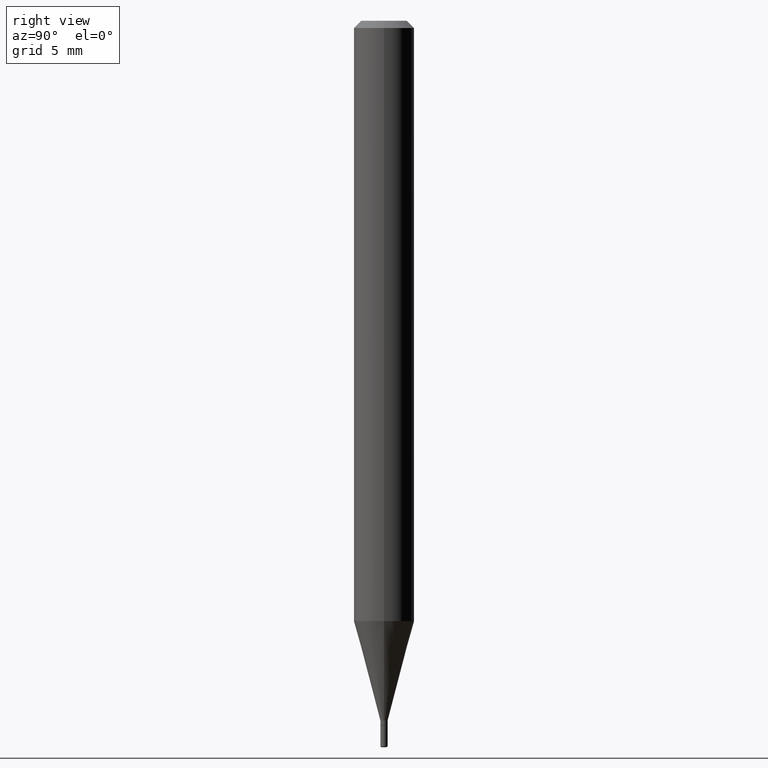
[diagram: clean part render]
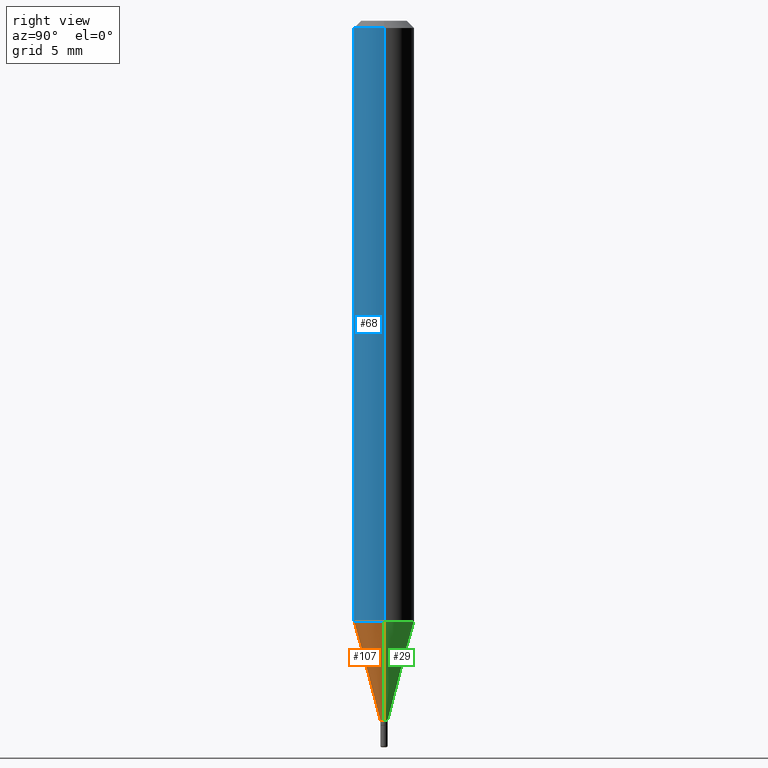
[diagram: same view with three faces highlighted in distinct colors, each labeled with its STEP entity id]
A machine part, right view with three faces highlighted in distinct colors.
Their STEP definitions:

[orange] entity #107 — the highlighted conical surface has half-angle 15 deg.
#7 = EDGE_CURVE ( 'NONE', #397, #500, #471, .T. ) ;
#13 = EDGE_CURVE ( 'NONE', #291, #500, #324, .T. ) ;
#18 = CARTESIAN_POINT ( 'NONE',  ( -0.007499999999999976304, -4.991899829446338518E-15, -1.445000000000000062 ) ) ;
#34 = CARTESIAN_POINT ( 'NONE',  ( 3.031738664122096989E-29, -4.328519318365077590E-15, -1.239737205583711699 ) ) ;
#66 = CARTESIAN_POINT ( 'NONE',  ( 0.06250000000000000000, -4.764954485720470049E-15, -1.239737205583711699 ) ) ;
#79 = CARTESIAN_POINT ( 'NONE',  ( 0.007499999999999976304, -5.097562754710993158E-15, -1.445000000000000062 ) ) ;
#95 = FACE_OUTER_BOUND ( 'NONE', #111, .T. ) ;
#107 = ADVANCED_FACE ( 'NONE', ( #95 ), #252, .T. ) ;
#111 = EDGE_LOOP ( 'NONE', ( #241, #164, #484, #175 ) ) ;
#116 = DIRECTION ( 'NONE',  ( 0.2588190451025206840, 1.565188264969626504E-15, 0.9659258262890682012 ) ) ;
#120 = VECTOR ( 'NONE', #116, 39.37007874015748854 ) ;
#142 = CARTESIAN_POINT ( 'NONE',  ( 3.533702424937522517E-29, -5.045190534628345684E-15, -1.445000000000000062 ) ) ;
#164 = ORIENTED_EDGE ( 'NONE', *, *, #266, .T. ) ;
#173 = VECTOR ( 'NONE', #303, 39.37007874015748854 ) ;
#175 = ORIENTED_EDGE ( 'NONE', *, *, #13, .F. ) ;
#187 = DIRECTION ( 'NONE',  ( 1.000000000000000000, -6.982962677686290376E-15, 0.000000000000000000 ) ) ;
#193 = CARTESIAN_POINT ( 'NONE',  ( 3.533702424937522517E-29, -5.045190534628345684E-15, -1.445000000000000062 ) ) ;
#200 = CARTESIAN_POINT ( 'NONE',  ( -0.06250000000000000000, -3.884430108515014974E-15, -1.239737205583711699 ) ) ;
#241 = ORIENTED_EDGE ( 'NONE', *, *, #507, .F. ) ;
#246 = AXIS2_PLACEMENT_3D ( 'NONE', #142, #326, #301 ) ;
#252 = CONICAL_SURFACE ( 'NONE', #426, 0.007499999999999976304, 0.2617993877991494078 ) ;
#266 = EDGE_CURVE ( 'NONE', #269, #397, #486, .T. ) ;
#267 = LINE ( 'NONE', #18, #173 ) ;
#269 = VERTEX_POINT ( 'NONE', #482 ) ;
#291 = VERTEX_POINT ( 'NONE', #200 ) ;
#301 = DIRECTION ( 'NONE',  ( 1.000000000000000000, -6.982962677686290376E-15, 0.000000000000000000 ) ) ;
#303 = DIRECTION ( 'NONE',  ( -0.2588190451025206840, 5.211531920934545520E-15, 0.9659258262890682012 ) ) ;
#324 = CIRCLE ( 'NONE', #478, 0.06250000000000000000 ) ;
#326 = DIRECTION ( 'NONE',  ( -2.445468806185136597E-29, 3.491481338843145583E-15, 1.000000000000000000 ) ) ;
#362 = DIRECTION ( 'NONE',  ( -2.445468806185136597E-29, 3.491481338843145583E-15, 1.000000000000000000 ) ) ;
#384 = DIRECTION ( 'NONE',  ( 1.000000000000000000, -6.982962677686262766E-15, 0.000000000000000000 ) ) ;
#394 = DIRECTION ( 'NONE',  ( -2.445468806185136597E-29, 3.491481338843145583E-15, 1.000000000000000000 ) ) ;
#397 = VERTEX_POINT ( 'NONE', #444 ) ;
#426 = AXIS2_PLACEMENT_3D ( 'NONE', #193, #394, #187 ) ;
#444 = CARTESIAN_POINT ( 'NONE',  ( 0.007499999999999976304, -5.097562754710993158E-15, -1.445000000000000062 ) ) ;
#471 = LINE ( 'NONE', #79, #120 ) ;
#478 = AXIS2_PLACEMENT_3D ( 'NONE', #34, #362, #384 ) ;
#482 = CARTESIAN_POINT ( 'NONE',  ( -0.007499999999999976304, -4.438164968980676746E-15, -1.445000000000000062 ) ) ;
#484 = ORIENTED_EDGE ( 'NONE', *, *, #7, .T. ) ;
#486 = CIRCLE ( 'NONE', #246, 0.007499999999999976304 ) ;
#500 = VERTEX_POINT ( 'NONE', #66 ) ;
#507 = EDGE_CURVE ( 'NONE', #269, #291, #267, .T. ) ;

[blue] entity #68 — the highlighted cylindrical surface (edge-blend (fillet) strip) has radius 1.5875 mm, axis along (-0, 0, 1).
#13 = EDGE_CURVE ( 'NONE', #291, #500, #324, .T. ) ;
#14 = CARTESIAN_POINT ( 'NONE',  ( 0.06250000000000000000, -4.888073874380378612E-16, -0.01499999999999970281 ) ) ;
#16 = DIRECTION ( 'NONE',  ( 1.000000000000000000, -6.982962677686266711E-15, 0.000000000000000000 ) ) ;
#21 = ORIENTED_EDGE ( 'NONE', *, *, #255, .T. ) ;
#22 = CARTESIAN_POINT ( 'NONE',  ( 3.668203209277632395E-31, -5.237222008264614861E-17, -0.01499999999999970281 ) ) ;
#34 = CARTESIAN_POINT ( 'NONE',  ( 3.031738664122096989E-29, -4.328519318365077590E-15, -1.239737205583711699 ) ) ;
#45 = AXIS2_PLACEMENT_3D ( 'NONE', #250, #70, #389 ) ;
#66 = CARTESIAN_POINT ( 'NONE',  ( 0.06250000000000000000, -4.764954485720470049E-15, -1.239737205583711699 ) ) ;
#68 = ADVANCED_FACE ( 'NONE', ( #299 ), #82, .T. ) ;
#70 = DIRECTION ( 'NONE',  ( -2.445468806185136597E-29, 3.491481338843145583E-15, 1.000000000000000000 ) ) ;
#82 = CYLINDRICAL_SURFACE ( 'NONE', #45, 0.06250000000000000000 ) ;
#106 = ORIENTED_EDGE ( 'NONE', *, *, #207, .F. ) ;
#132 = DIRECTION ( 'NONE',  ( -2.445468806185136597E-29, 3.491481338843145583E-15, 1.000000000000000000 ) ) ;
#176 = CARTESIAN_POINT ( 'NONE',  ( 0.06250000000000000000, -4.364351673553916694E-16, 3.047610484872459871E-30 ) ) ;
#179 = CARTESIAN_POINT ( 'NONE',  ( -0.06250000000000000000, 4.440892098500626162E-16, -3.074334431409316114E-30 ) ) ;
#200 = CARTESIAN_POINT ( 'NONE',  ( -0.06250000000000000000, -3.884430108515014974E-15, -1.239737205583711699 ) ) ;
#207 = EDGE_CURVE ( 'NONE', #235, #417, #316, .T. ) ;
#211 = EDGE_CURVE ( 'NONE', #291, #235, #442, .T. ) ;
#235 = VERTEX_POINT ( 'NONE', #418 ) ;
#250 = CARTESIAN_POINT ( 'NONE',  ( 0.000000000000000000, 0.000000000000000000, 0.000000000000000000 ) ) ;
#255 = EDGE_CURVE ( 'NONE', #500, #417, #380, .T. ) ;
#291 = VERTEX_POINT ( 'NONE', #200 ) ;
#294 = DIRECTION ( 'NONE',  ( -2.445468806185136877E-29, 3.491481338843145188E-15, 1.000000000000000000 ) ) ;
#295 = VECTOR ( 'NONE', #338, 39.37007874015748143 ) ;
#299 = FACE_OUTER_BOUND ( 'NONE', #494, .T. ) ;
#316 = CIRCLE ( 'NONE', #475, 0.06250000000000000000 ) ;
#324 = CIRCLE ( 'NONE', #478, 0.06250000000000000000 ) ;
#338 = DIRECTION ( 'NONE',  ( -2.445468806185136877E-29, 3.491481338843145188E-15, 1.000000000000000000 ) ) ;
#362 = DIRECTION ( 'NONE',  ( -2.445468806185136597E-29, 3.491481338843145583E-15, 1.000000000000000000 ) ) ;
#380 = LINE ( 'NONE', #176, #295 ) ;
#384 = DIRECTION ( 'NONE',  ( 1.000000000000000000, -6.982962677686262766E-15, 0.000000000000000000 ) ) ;
#389 = DIRECTION ( 'NONE',  ( 1.000000000000000000, -6.982962677686266711E-15, 4.876176775795935793E-29 ) ) ;
#417 = VERTEX_POINT ( 'NONE', #14 ) ;
#418 = CARTESIAN_POINT ( 'NONE',  ( -0.06250000000000000000, -1.746356559373798930E-15, -0.01499999999999970281 ) ) ;
#435 = VECTOR ( 'NONE', #294, 39.37007874015748143 ) ;
#442 = LINE ( 'NONE', #179, #435 ) ;
#472 = ORIENTED_EDGE ( 'NONE', *, *, #211, .F. ) ;
#475 = AXIS2_PLACEMENT_3D ( 'NONE', #22, #132, #16 ) ;
#478 = AXIS2_PLACEMENT_3D ( 'NONE', #34, #362, #384 ) ;
#494 = EDGE_LOOP ( 'NONE', ( #472, #503, #21, #106 ) ) ;
#500 = VERTEX_POINT ( 'NONE', #66 ) ;
#503 = ORIENTED_EDGE ( 'NONE', *, *, #13, .T. ) ;

[green] entity #29 — the highlighted conical surface has half-angle 15 deg.
#7 = EDGE_CURVE ( 'NONE', #397, #500, #471, .T. ) ;
#18 = CARTESIAN_POINT ( 'NONE',  ( -0.007499999999999976304, -4.991899829446338518E-15, -1.445000000000000062 ) ) ;
#19 = FACE_OUTER_BOUND ( 'NONE', #459, .T. ) ;
#29 = ADVANCED_FACE ( 'NONE', ( #19 ), #183, .T. ) ;
#44 = DIRECTION ( 'NONE',  ( -2.445468806185136597E-29, 3.491481338843145583E-15, 1.000000000000000000 ) ) ;
#47 = CARTESIAN_POINT ( 'NONE',  ( 3.031738664122096989E-29, -4.328519318365077590E-15, -1.239737205583711699 ) ) ;
#66 = CARTESIAN_POINT ( 'NONE',  ( 0.06250000000000000000, -4.764954485720470049E-15, -1.239737205583711699 ) ) ;
#78 = AXIS2_PLACEMENT_3D ( 'NONE', #254, #327, #483 ) ;
#79 = CARTESIAN_POINT ( 'NONE',  ( 0.007499999999999976304, -5.097562754710993158E-15, -1.445000000000000062 ) ) ;
#80 = DIRECTION ( 'NONE',  ( 1.000000000000000000, -6.982962677686262766E-15, 0.000000000000000000 ) ) ;
#86 = ORIENTED_EDGE ( 'NONE', *, *, #198, .F. ) ;
#116 = DIRECTION ( 'NONE',  ( 0.2588190451025206840, 1.565188264969626504E-15, 0.9659258262890682012 ) ) ;
#120 = VECTOR ( 'NONE', #116, 39.37007874015748854 ) ;
#138 = ORIENTED_EDGE ( 'NONE', *, *, #507, .T. ) ;
#150 = AXIS2_PLACEMENT_3D ( 'NONE', #47, #44, #80 ) ;
#158 = ORIENTED_EDGE ( 'NONE', *, *, #7, .F. ) ;
#173 = VECTOR ( 'NONE', #303, 39.37007874015748854 ) ;
#183 = CONICAL_SURFACE ( 'NONE', #78, 0.007499999999999976304, 0.2617993877991494078 ) ;
#198 = EDGE_CURVE ( 'NONE', #500, #291, #436, .T. ) ;
#200 = CARTESIAN_POINT ( 'NONE',  ( -0.06250000000000000000, -3.884430108515014974E-15, -1.239737205583711699 ) ) ;
#218 = DIRECTION ( 'NONE',  ( 1.000000000000000000, -6.982962677686290376E-15, 0.000000000000000000 ) ) ;
#245 = EDGE_CURVE ( 'NONE', #397, #269, #461, .T. ) ;
#254 = CARTESIAN_POINT ( 'NONE',  ( 3.533702424937522517E-29, -5.045190534628345684E-15, -1.445000000000000062 ) ) ;
#267 = LINE ( 'NONE', #18, #173 ) ;
#269 = VERTEX_POINT ( 'NONE', #482 ) ;
#291 = VERTEX_POINT ( 'NONE', #200 ) ;
#303 = DIRECTION ( 'NONE',  ( -0.2588190451025206840, 5.211531920934545520E-15, 0.9659258262890682012 ) ) ;
#327 = DIRECTION ( 'NONE',  ( -2.445468806185136597E-29, 3.491481338843145583E-15, 1.000000000000000000 ) ) ;
#381 = ORIENTED_EDGE ( 'NONE', *, *, #245, .T. ) ;
#397 = VERTEX_POINT ( 'NONE', #444 ) ;
#407 = CARTESIAN_POINT ( 'NONE',  ( 3.533702424937522517E-29, -5.045190534628345684E-15, -1.445000000000000062 ) ) ;
#436 = CIRCLE ( 'NONE', #150, 0.06250000000000000000 ) ;
#444 = CARTESIAN_POINT ( 'NONE',  ( 0.007499999999999976304, -5.097562754710993158E-15, -1.445000000000000062 ) ) ;
#446 = DIRECTION ( 'NONE',  ( -2.445468806185136597E-29, 3.491481338843145583E-15, 1.000000000000000000 ) ) ;
#459 = EDGE_LOOP ( 'NONE', ( #381, #138, #86, #158 ) ) ;
#461 = CIRCLE ( 'NONE', #501, 0.007499999999999976304 ) ;
#471 = LINE ( 'NONE', #79, #120 ) ;
#482 = CARTESIAN_POINT ( 'NONE',  ( -0.007499999999999976304, -4.438164968980676746E-15, -1.445000000000000062 ) ) ;
#483 = DIRECTION ( 'NONE',  ( 1.000000000000000000, -6.982962677686290376E-15, 0.000000000000000000 ) ) ;
#500 = VERTEX_POINT ( 'NONE', #66 ) ;
#501 = AXIS2_PLACEMENT_3D ( 'NONE', #407, #446, #218 ) ;
#507 = EDGE_CURVE ( 'NONE', #269, #291, #267, .T. ) ;